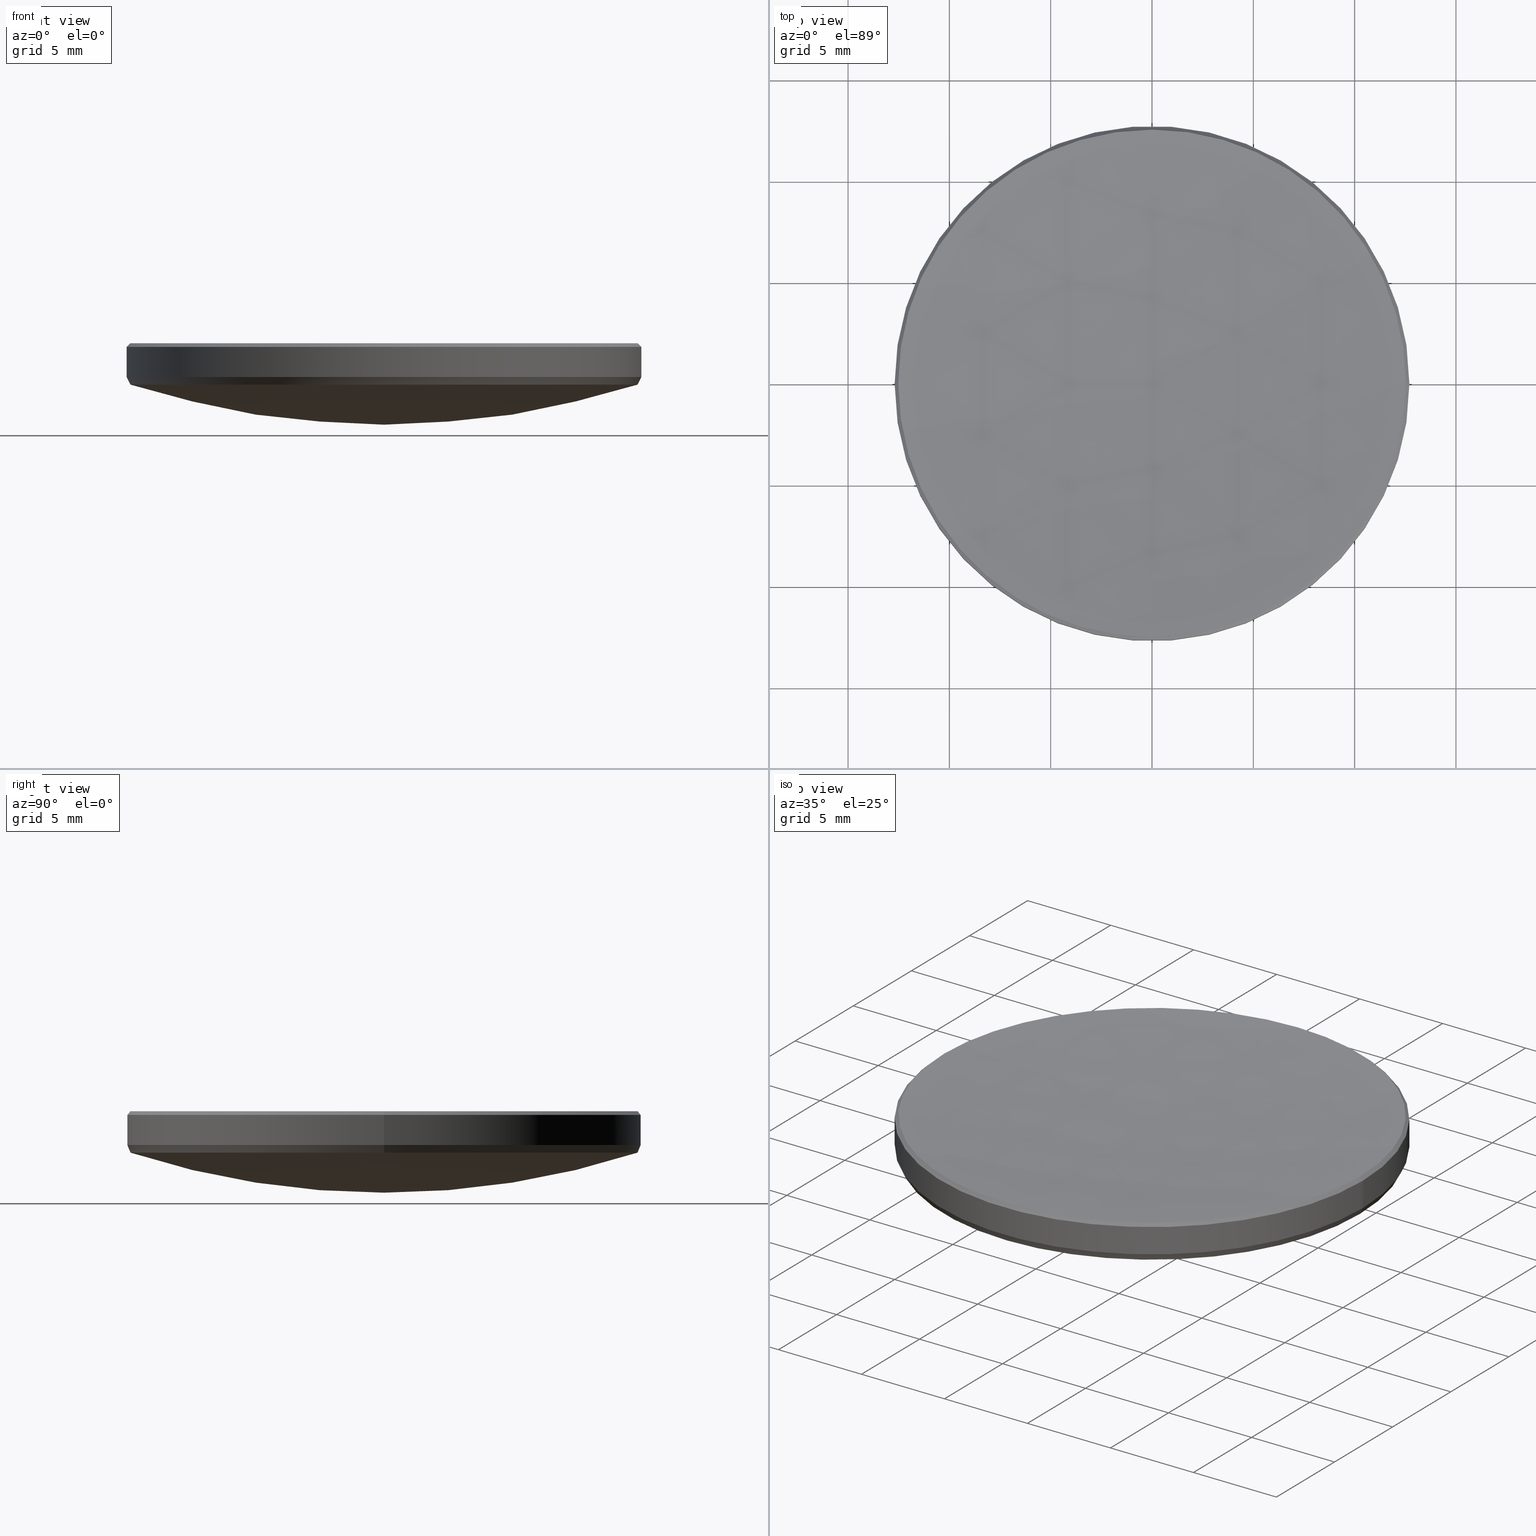
[diagram: canonical four-view strip — front | top / right | iso, engineering-drawing reading convention]
A machine part, canonical four-view strip (front | top / right | iso — engineering-drawing reading convention). The complete STEP part file that produces these views, byte-faithful:
ISO-10303-21;
HEADER;
FILE_DESCRIPTION (( 'STEP AP214' ),
    '1' );
FILE_NAME ('GLM1-025B-125-NIR.STEP',
    '2024-08-09T02:14:00',
    ( 'Windows User' ),
    ( 'P R C' ),
    'SwSTEP 2.0',
    'SolidWorks 2022',
    '' );
FILE_SCHEMA (( 'AUTOMOTIVE_DESIGN' ));
ENDSEC;

DATA;
#1 = DIRECTION ( 'NONE',  ( 1.000000000000000000, 0.000000000000000000, 0.000000000000000000 ) ) ;
#2 = CARTESIAN_POINT ( 'NONE',  ( 12.69999999999999929, 0.000000000000000000, 4.313967534857077624 ) ) ;
#3 = EDGE_CURVE ( 'NONE', #129, #217, #34, .T. ) ;
#4 = CARTESIAN_POINT ( 'NONE',  ( -12.69999999999999929, 1.555301434917138433E-15, 4.313967534857077624 ) ) ;
#5 = CIRCLE ( 'NONE', #101, 40.59999999999999432 ) ;
#6 = DIRECTION ( 'NONE',  ( -1.000000000000000000, 0.000000000000000000, 0.000000000000000000 ) ) ;
#7 = DIRECTION ( 'NONE',  ( 1.000000000000000000, 0.000000000000000000, 0.000000000000000000 ) ) ;
#8 = ORIENTED_EDGE ( 'NONE', *, *, #225, .F. ) ;
#9 = EDGE_LOOP ( 'NONE', ( #63, #190, #320, #144 ) ) ;
#10 = AXIS2_PLACEMENT_3D ( 'NONE', #327, #102, #98 ) ;
#11 = ORIENTED_EDGE ( 'NONE', *, *, #198, .F. ) ;
#12 = VERTEX_POINT ( 'NONE', #330 ) ;
#13 = AXIS2_PLACEMENT_3D ( 'NONE', #202, #284, #257 ) ;
#14 = ADVANCED_FACE ( 'NONE', ( #307 ), #150, .F. ) ;
#15 = APPLICATION_CONTEXT ( 'automotive_design' ) ;
#16 = ORIENTED_EDGE ( 'NONE', *, *, #29, .F. ) ;
#17 =( NAMED_UNIT ( * ) SI_UNIT ( $, .STERADIAN. ) SOLID_ANGLE_UNIT ( ) );
#18 = VECTOR ( 'NONE', #282, 1000.000000000000000 ) ;
#19 = PRESENTATION_LAYER_ASSIGNMENT (  '', '', ( #117 ) ) ;
#20 = DIRECTION ( 'NONE',  ( -1.000000000000000000, 0.000000000000000000, 0.000000000000000000 ) ) ;
#21 = STYLED_ITEM ( 'NONE', ( #135 ), #229 ) ;
#22 = CARTESIAN_POINT ( 'NONE',  ( -12.51034897911231170, 1.543688659132881617E-15, 3.938057364562333351 ) ) ;
#23 = DIRECTION ( 'NONE',  ( 0.000000000000000000, 0.000000000000000000, 1.000000000000000000 ) ) ;
#24 = EDGE_CURVE ( 'NONE', #266, #234, #65, .T. ) ;
#25 = CARTESIAN_POINT ( 'NONE',  ( 0.000000000000000000, 0.000000000000000000, 112.1429225148808655 ) ) ;
#26 = CARTESIAN_POINT ( 'NONE',  ( 12.52123640383887881, 1.533409208332859768E-15, 5.978763596161118521 ) ) ;
#27 = UNCERTAINTY_MEASURE_WITH_UNIT (LENGTH_MEASURE( 1.000000000000000082E-05 ), #271, 'distance_accuracy_value', 'NONE');
#28 = CYLINDRICAL_SURFACE ( 'NONE', #10, 12.69999999999999929 ) ;
#29 = EDGE_CURVE ( 'NONE', #213, #66, #325, .T. ) ;
#30 = DIRECTION ( 'NONE',  ( -0.000000000000000000, -0.000000000000000000, 1.000000000000000000 ) ) ;
#31 = SPHERICAL_SURFACE ( 'NONE', #253, 40.59999999999999432 ) ;
#32 = DIRECTION ( 'NONE',  ( -1.000000000000000000, 0.000000000000000000, 0.000000000000000000 ) ) ;
#33 = CARTESIAN_POINT ( 'NONE',  ( 0.000000000000000000, 0.000000000000000000, 4.313967534857077624 ) ) ;
#34 = CIRCLE ( 'NONE', #243, 12.51034897911231170 ) ;
#35 = CARTESIAN_POINT ( 'NONE',  ( 0.000000000000000000, 0.000000000000000000, 42.56254659640620730 ) ) ;
#36 = ORIENTED_EDGE ( 'NONE', *, *, #41, .T. ) ;
#37 = FACE_OUTER_BOUND ( 'NONE', #240, .T. ) ;
#38 = VERTEX_POINT ( 'NONE', #77 ) ;
#39 = EDGE_LOOP ( 'NONE', ( #216, #167, #166, #262, #292 ) ) ;
#40 = AXIS2_PLACEMENT_3D ( 'NONE', #25, #20, #221 ) ;
#41 = EDGE_CURVE ( 'NONE', #12, #38, #156, .T. ) ;
#42 = ORIENTED_EDGE ( 'NONE', *, *, #316, .T. ) ;
#43 = VERTEX_POINT ( 'NONE', #22 ) ;
#44 =( GEOMETRIC_REPRESENTATION_CONTEXT ( 3 ) GLOBAL_UNCERTAINTY_ASSIGNED_CONTEXT ( ( #51 ) ) GLOBAL_UNIT_ASSIGNED_CONTEXT ( ( #211, #115, #237 ) ) REPRESENTATION_CONTEXT ( 'NONE', 'WORKASPACE' ) );
#45 = SURFACE_SIDE_STYLE ('',( #267 ) ) ;
#46 = PRODUCT_RELATED_PRODUCT_CATEGORY ( 'part', '', ( #301 ) ) ;
#47 = SHAPE_DEFINITION_REPRESENTATION ( #331, #67 ) ;
#48 = VECTOR ( 'NONE', #110, 1000.000000000000000 ) ;
#49 = CARTESIAN_POINT ( 'NONE',  ( 0.000000000000000000, 0.000000000000000000, 5.978763596161104310 ) ) ;
#50 = AXIS2_PLACEMENT_3D ( 'NONE', #173, #148, #1 ) ;
#51 = UNCERTAINTY_MEASURE_WITH_UNIT (LENGTH_MEASURE( 1.000000000000000082E-05 ), #211, 'distance_accuracy_value', 'NONE');
#52 = FACE_OUTER_BOUND ( 'NONE', #322, .T. ) ;
#53 = CARTESIAN_POINT ( 'NONE',  ( 0.000000000000000000, 0.000000000000000000, 5.978763596161104310 ) ) ;
#54 = CARTESIAN_POINT ( 'NONE',  ( -12.52123640383887881, 0.000000000000000000, 5.978763596161118521 ) ) ;
#55 = AXIS2_PLACEMENT_3D ( 'NONE', #97, #249, #74 ) ;
#56 = DIRECTION ( 'NONE',  ( 0.000000000000000000, 0.000000000000000000, -1.000000000000000000 ) ) ;
#57 = UNCERTAINTY_MEASURE_WITH_UNIT (LENGTH_MEASURE( 1.000000000000000082E-05 ), #310, 'distance_accuracy_value', 'NONE');
#58 = LINE ( 'NONE', #4, #288 ) ;
#59 = AXIS2_PLACEMENT_3D ( 'NONE', #245, #126, #79 ) ;
#60 = CARTESIAN_POINT ( 'NONE',  ( 0.000000000000000000, 0.000000000000000000, 42.56254659640620730 ) ) ;
#61 = ORIENTED_EDGE ( 'NONE', *, *, #232, .T. ) ;
#62 = DIRECTION ( 'NONE',  ( -1.000000000000000000, 0.000000000000000000, 0.000000000000000000 ) ) ;
#63 = ORIENTED_EDGE ( 'NONE', *, *, #321, .F. ) ;
#64 = ORIENTED_EDGE ( 'NONE', *, *, #120, .F. ) ;
#65 = CIRCLE ( 'NONE', #93, 12.69999999999999929 ) ;
#66 = VERTEX_POINT ( 'NONE', #277 ) ;
#67 = ADVANCED_BREP_SHAPE_REPRESENTATION ( 'GLM1-025B-125-NIR', ( #229, #235 ), #44 ) ;
#68 = FILL_AREA_STYLE_COLOUR ( '', #72 ) ;
#69 =( GEOMETRIC_REPRESENTATION_CONTEXT ( 3 ) GLOBAL_UNCERTAINTY_ASSIGNED_CONTEXT ( ( #57 ) ) GLOBAL_UNIT_ASSIGNED_CONTEXT ( ( #310, #176, #332 ) ) REPRESENTATION_CONTEXT ( 'NONE', 'WORKASPACE' ) );
#70 = AXIS2_PLACEMENT_3D ( 'NONE', #35, #180, #280 ) ;
#71 = ORIENTED_EDGE ( 'NONE', *, *, #96, .T. ) ;
#72 = COLOUR_RGB ( '',1.000000000000000000, 1.000000000000000000, 1.000000000000000000 ) ;
#73 = EDGE_CURVE ( 'NONE', #145, #118, #181, .T. ) ;
#74 = DIRECTION ( 'NONE',  ( 0.000000000000000000, 0.000000000000000000, -1.000000000000000000 ) ) ;
#75 = DIRECTION ( 'NONE',  ( 0.000000000000000000, 0.000000000000000000, -1.000000000000000000 ) ) ;
#76 = CONICAL_SURFACE ( 'NONE', #143, 12.52123640383887881, 0.7853981633974531640 ) ;
#77 = CARTESIAN_POINT ( 'NONE',  ( 12.69999999999999929, 1.555301434917138433E-15, 5.799999999999999822 ) ) ;
#78 = ADVANCED_FACE ( 'NONE', ( #153 ), #28, .T. ) ;
#79 = DIRECTION ( 'NONE',  ( 1.000000000000000000, 0.000000000000000000, 0.000000000000000000 ) ) ;
#80 = CARTESIAN_POINT ( 'NONE',  ( 12.69999999999999929, 1.555301434917138433E-15, 4.313967534857077624 ) ) ;
#81 = VERTEX_POINT ( 'NONE', #226 ) ;
#82 = AXIS2_PLACEMENT_3D ( 'NONE', #200, #175, #154 ) ;
#83 = CARTESIAN_POINT ( 'NONE',  ( -12.69999999999999929, 0.000000000000000000, 10.00000000000000000 ) ) ;
#84 = AXIS2_PLACEMENT_3D ( 'NONE', #60, #62, #164 ) ;
#85 = EDGE_CURVE ( 'NONE', #66, #38, #252, .T. ) ;
#86 = DIRECTION ( 'NONE',  ( -0.000000000000000000, -0.000000000000000000, 1.000000000000000000 ) ) ;
#87 = DIRECTION ( 'NONE',  ( -0.000000000000000000, -0.000000000000000000, 1.000000000000000000 ) ) ;
#88 = SURFACE_STYLE_USAGE ( .BOTH. , #45 ) ;
#89 = ORIENTED_EDGE ( 'NONE', *, *, #232, .F. ) ;
#90 = ORIENTED_EDGE ( 'NONE', *, *, #24, .F. ) ;
#91 = ORIENTED_EDGE ( 'NONE', *, *, #146, .T. ) ;
#92 = ORIENTED_EDGE ( 'NONE', *, *, #269, .F. ) ;
#93 = AXIS2_PLACEMENT_3D ( 'NONE', #123, #248, #275 ) ;
#94 = ORIENTED_EDGE ( 'NONE', *, *, #3, .F. ) ;
#95 = AXIS2_PLACEMENT_3D ( 'NONE', #304, #149, #222 ) ;
#96 = EDGE_CURVE ( 'NONE', #187, #302, #5, .T. ) ;
#97 = CARTESIAN_POINT ( 'NONE',  ( 0.000000000000000000, 0.000000000000000000, 112.1429225148808655 ) ) ;
#98 = DIRECTION ( 'NONE',  ( -1.000000000000000000, 0.000000000000000000, 0.000000000000000000 ) ) ;
#99 = DIRECTION ( 'NONE',  ( -1.000000000000000000, 0.000000000000000000, 0.000000000000000000 ) ) ;
#100 = ADVANCED_FACE ( 'NONE', ( #52 ), #306, .T. ) ;
#101 = AXIS2_PLACEMENT_3D ( 'NONE', #128, #224, #75 ) ;
#102 = DIRECTION ( 'NONE',  ( -0.000000000000000000, -0.000000000000000000, -1.000000000000000000 ) ) ;
#103 = FILL_AREA_STYLE_COLOUR ( '', #168 ) ;
#104 = PRODUCT_DEFINITION_FORMATION_WITH_SPECIFIED_SOURCE ( '�κ�', '', #301, .NOT_KNOWN. ) ;
#105 = CARTESIAN_POINT ( 'NONE',  ( 12.51034897911231170, 0.000000000000000000, 3.938057364562333351 ) ) ;
#106 = DIRECTION ( 'NONE',  ( 0.000000000000000000, 0.000000000000000000, -1.000000000000000000 ) ) ;
#107 = ADVANCED_FACE ( 'NONE', ( #201 ), #326, .T. ) ;
#108 = CARTESIAN_POINT ( 'NONE',  ( 0.000000000000000000, 0.000000000000000000, 3.938057364562333351 ) ) ;
#109 = CONICAL_SURFACE ( 'NONE', #197, 12.69999999999999929, 0.4672503280471582698 ) ;
#110 = DIRECTION ( 'NONE',  ( -0.000000000000000000, -0.000000000000000000, -1.000000000000000000 ) ) ;
#111 = ORIENTED_EDGE ( 'NONE', *, *, #268, .F. ) ;
#112 = LINE ( 'NONE', #138, #48 ) ;
#113 = EDGE_LOOP ( 'NONE', ( #8, #71, #242, #169 ) ) ;
#114 = MECHANICAL_DESIGN_GEOMETRIC_PRESENTATION_REPRESENTATION (  '', ( #21 ), #69 ) ;
#115 =( NAMED_UNIT ( * ) PLANE_ANGLE_UNIT ( ) SI_UNIT ( $, .RADIAN. ) );
#116 = ORIENTED_EDGE ( 'NONE', *, *, #297, .F. ) ;
#117 = STYLED_ITEM ( 'NONE', ( #289 ), #67 ) ;
#118 = VERTEX_POINT ( 'NONE', #274 ) ;
#119 = ORIENTED_EDGE ( 'NONE', *, *, #146, .F. ) ;
#120 = EDGE_CURVE ( 'NONE', #302, #129, #261, .T. ) ;
#121 = AXIS2_PLACEMENT_3D ( 'NONE', #137, #255, #6 ) ;
#122 = CIRCLE ( 'NONE', #227, 12.52123640383887704 ) ;
#123 = CARTESIAN_POINT ( 'NONE',  ( 0.000000000000000000, 0.000000000000000000, 4.313967534857077624 ) ) ;
#124 = VECTOR ( 'NONE', #199, 1000.000000000000000 ) ;
#125 = DIRECTION ( 'NONE',  ( 1.000000000000000000, 0.000000000000000000, 0.000000000000000000 ) ) ;
#126 = DIRECTION ( 'NONE',  ( 0.000000000000000000, 0.000000000000000000, -1.000000000000000000 ) ) ;
#127 = SURFACE_STYLE_USAGE ( .BOTH. , #131 ) ;
#128 = CARTESIAN_POINT ( 'NONE',  ( 0.000000000000000000, 0.000000000000000000, 42.56254659640620730 ) ) ;
#129 = VERTEX_POINT ( 'NONE', #105 ) ;
#130 = CARTESIAN_POINT ( 'NONE',  ( 0.000000000000000000, 0.000000000000000000, 42.56254659640620730 ) ) ;
#131 = SURFACE_SIDE_STYLE ('',( #281 ) ) ;
#132 = ADVANCED_FACE ( 'NONE', ( #203 ), #196, .F. ) ;
#133 = CARTESIAN_POINT ( 'NONE',  ( 0.000000000000000000, 2.486033002269126979E-15, 1.962546596406211652 ) ) ;
#134 = PRODUCT_DEFINITION_CONTEXT ( 'detailed design', #165, 'design' ) ;
#135 = PRESENTATION_STYLE_ASSIGNMENT (( #127 ) ) ;
#136 = AXIS2_PLACEMENT_3D ( 'NONE', #313, #56, #285 ) ;
#137 = CARTESIAN_POINT ( 'NONE',  ( 0.000000000000000000, 0.000000000000000000, 5.978763596161118521 ) ) ;
#138 = CARTESIAN_POINT ( 'NONE',  ( 12.69999999999999929, 1.555301434917138433E-15, 10.00000000000000000 ) ) ;
#139 = ORIENTED_EDGE ( 'NONE', *, *, #225, .T. ) ;
#140 = EDGE_CURVE ( 'NONE', #81, #145, #273, .T. ) ;
#141 = ORIENTED_EDGE ( 'NONE', *, *, #152, .T. ) ;
#142 = ORIENTED_EDGE ( 'NONE', *, *, #258, .T. ) ;
#143 = AXIS2_PLACEMENT_3D ( 'NONE', #157, #230, #32 ) ;
#144 = ORIENTED_EDGE ( 'NONE', *, *, #297, .T. ) ;
#145 = VERTEX_POINT ( 'NONE', #256 ) ;
#146 = EDGE_CURVE ( 'NONE', #43, #302, #231, .T. ) ;
#147 = AXIS2_PLACEMENT_3D ( 'NONE', #160, #87, #186 ) ;
#148 = DIRECTION ( 'NONE',  ( -0.000000000000000000, -0.000000000000000000, 1.000000000000000000 ) ) ;
#149 = DIRECTION ( 'NONE',  ( -1.000000000000000000, 0.000000000000000000, 0.000000000000000000 ) ) ;
#150 = SPHERICAL_SURFACE ( 'NONE', #95, 106.9000000000000057 ) ;
#151 = DIRECTION ( 'NONE',  ( -0.7071067811865510144, 0.000000000000000000, -0.7071067811865441310 ) ) ;
#152 = EDGE_CURVE ( 'NONE', #38, #12, #238, .T. ) ;
#153 = FACE_OUTER_BOUND ( 'NONE', #212, .T. ) ;
#154 = DIRECTION ( 'NONE',  ( 1.000000000000000000, 0.000000000000000000, 0.000000000000000000 ) ) ;
#155 = CARTESIAN_POINT ( 'NONE',  ( 0.000000000000000000, 0.000000000000000000, 4.313967534857077624 ) ) ;
#156 = CIRCLE ( 'NONE', #82, 12.69999999999999929 ) ;
#157 = CARTESIAN_POINT ( 'NONE',  ( 0.000000000000000000, 0.000000000000000000, 5.978763596161118521 ) ) ;
#158 = CARTESIAN_POINT ( 'NONE',  ( -1.533409208332850696E-15, -12.52123640383880421, 5.978763596161098093 ) ) ;
#159 = DIRECTION ( 'NONE',  ( -1.000000000000000000, 0.000000000000000000, 0.000000000000000000 ) ) ;
#160 = CARTESIAN_POINT ( 'NONE',  ( 0.000000000000000000, 0.000000000000000000, 5.978763596161104310 ) ) ;
#161 = DIRECTION ( 'NONE',  ( -1.000000000000000000, 1.224646799147353207E-16, 0.000000000000000000 ) ) ;
#162 = EDGE_LOOP ( 'NONE', ( #92, #141, #236, #319 ) ) ;
#163 = AXIS2_PLACEMENT_3D ( 'NONE', #155, #30, #260 ) ;
#164 = DIRECTION ( 'NONE',  ( 0.000000000000000000, 1.000000000000000000, 0.000000000000000000 ) ) ;
#165 = APPLICATION_CONTEXT ( 'automotive_design' ) ;
#166 = ORIENTED_EDGE ( 'NONE', *, *, #41, .F. ) ;
#167 = ORIENTED_EDGE ( 'NONE', *, *, #85, .T. ) ;
#168 = COLOUR_RGB ( '',1.000000000000000000, 1.000000000000000000, 1.000000000000000000 ) ;
#169 = ORIENTED_EDGE ( 'NONE', *, *, #3, .T. ) ;
#170 = FILL_AREA_STYLE ('',( #68 ) ) ;
#171 = ORIENTED_EDGE ( 'NONE', *, *, #269, .T. ) ;
#172 = CARTESIAN_POINT ( 'NONE',  ( 0.000000000000000000, 0.000000000000000000, 3.938057364562333351 ) ) ;
#173 = CARTESIAN_POINT ( 'NONE',  ( 0.000000000000000000, 0.000000000000000000, 4.313967534857077624 ) ) ;
#174 = APPLICATION_PROTOCOL_DEFINITION ( 'draft international standard', 'automotive_design', 1998, #165 ) ;
#175 = DIRECTION ( 'NONE',  ( 0.000000000000000000, 0.000000000000000000, -1.000000000000000000 ) ) ;
#176 =( NAMED_UNIT ( * ) PLANE_ANGLE_UNIT ( ) SI_UNIT ( $, .RADIAN. ) );
#177 = ORIENTED_EDGE ( 'NONE', *, *, #258, .F. ) ;
#178 = DIRECTION ( 'NONE',  ( 1.000000000000000000, 0.000000000000000000, 0.000000000000000000 ) ) ;
#179 = ADVANCED_FACE ( 'NONE', ( #206 ), #76, .T. ) ;
#180 = DIRECTION ( 'NONE',  ( -1.000000000000000000, 1.224646799147353207E-16, 0.000000000000000000 ) ) ;
#181 = CIRCLE ( 'NONE', #295, 12.52123640383887704 ) ;
#182 = FACE_OUTER_BOUND ( 'NONE', #113, .T. ) ;
#183 = FILL_AREA_STYLE ('',( #103 ) ) ;
#184 = DIRECTION ( 'NONE',  ( 1.000000000000000000, 0.000000000000000000, 0.000000000000000000 ) ) ;
#185 = FACE_OUTER_BOUND ( 'NONE', #329, .T. ) ;
#186 = DIRECTION ( 'NONE',  ( 1.000000000000000000, 0.000000000000000000, 0.000000000000000000 ) ) ;
#187 = VERTEX_POINT ( 'NONE', #133 ) ;
#188 = DIRECTION ( 'NONE',  ( -1.224646799147353207E-16, -1.000000000000000000, 0.000000000000000000 ) ) ;
#189 = ORIENTED_EDGE ( 'NONE', *, *, #140, .F. ) ;
#190 = ORIENTED_EDGE ( 'NONE', *, *, #140, .T. ) ;
#191 = ADVANCED_FACE ( 'NONE', ( #182 ), #31, .T. ) ;
#192 = ORIENTED_EDGE ( 'NONE', *, *, #246, .T. ) ;
#193 = ADVANCED_FACE ( 'NONE', ( #228 ), #311, .T. ) ;
#194 = AXIS2_PLACEMENT_3D ( 'NONE', #53, #270, #303 ) ;
#195 = ORIENTED_EDGE ( 'NONE', *, *, #85, .F. ) ;
#196 = SPHERICAL_SURFACE ( 'NONE', #40, 106.9000000000000057 ) ;
#197 = AXIS2_PLACEMENT_3D ( 'NONE', #33, #86, #178 ) ;
#198 = EDGE_CURVE ( 'NONE', #12, #266, #312, .T. ) ;
#199 = DIRECTION ( 'NONE',  ( 0.7071067811865510144, 8.659560562354975999E-17, -0.7071067811865441310 ) ) ;
#200 = CARTESIAN_POINT ( 'NONE',  ( 0.000000000000000000, 0.000000000000000000, 5.799999999999999822 ) ) ;
#201 = FACE_OUTER_BOUND ( 'NONE', #162, .T. ) ;
#202 = CARTESIAN_POINT ( 'NONE',  ( 0.000000000000000000, 0.000000000000000000, 3.938057364562333351 ) ) ;
#203 = FACE_OUTER_BOUND ( 'NONE', #9, .T. ) ;
#204 = DIRECTION ( 'NONE',  ( 0.000000000000000000, 1.000000000000000000, 0.000000000000000000 ) ) ;
#205 = PRESENTATION_LAYER_ASSIGNMENT (  '', '', ( #21 ) ) ;
#206 = FACE_OUTER_BOUND ( 'NONE', #294, .T. ) ;
#207 = CIRCLE ( 'NONE', #13, 12.51034897911231170 ) ;
#208 = PRODUCT_DEFINITION ( 'δ֪', '', #104, #134 ) ;
#209 = CARTESIAN_POINT ( 'NONE',  ( 0.000000000000000000, 0.000000000000000000, 5.978763596161104310 ) ) ;
#210 = EDGE_LOOP ( 'NONE', ( #189, #264, #317, #42 ) ) ;
#211 =( LENGTH_UNIT ( ) NAMED_UNIT ( * ) SI_UNIT ( .MILLI., .METRE. ) );
#212 = EDGE_LOOP ( 'NONE', ( #36, #171, #318, #11 ) ) ;
#213 = VERTEX_POINT ( 'NONE', #158 ) ;
#214 = EDGE_CURVE ( 'NONE', #43, #266, #58, .T. ) ;
#215 = VECTOR ( 'NONE', #250, 1000.000000000000114 ) ;
#216 = ORIENTED_EDGE ( 'NONE', *, *, #316, .F. ) ;
#217 = VERTEX_POINT ( 'NONE', #233 ) ;
#218 = AXIS2_PLACEMENT_3D ( 'NONE', #287, #161, #188 ) ;
#219 =( NAMED_UNIT ( * ) PLANE_ANGLE_UNIT ( ) SI_UNIT ( $, .RADIAN. ) );
#220 = CIRCLE ( 'NONE', #70, 40.59999999999999432 ) ;
#221 = DIRECTION ( 'NONE',  ( 0.000000000000000000, 1.000000000000000000, 0.000000000000000000 ) ) ;
#222 = DIRECTION ( 'NONE',  ( 0.000000000000000000, 1.000000000000000000, 0.000000000000000000 ) ) ;
#223 = DIRECTION ( 'NONE',  ( -0.000000000000000000, -0.000000000000000000, -1.000000000000000000 ) ) ;
#224 = DIRECTION ( 'NONE',  ( 1.000000000000000000, -0.000000000000000000, 0.000000000000000000 ) ) ;
#225 = EDGE_CURVE ( 'NONE', #187, #217, #220, .T. ) ;
#226 = CARTESIAN_POINT ( 'NONE',  ( 0.000000000000000000, 6.545737141442603608E-15, 5.242922514880857143 ) ) ;
#227 = AXIS2_PLACEMENT_3D ( 'NONE', #209, #291, #7 ) ;
#228 = FACE_OUTER_BOUND ( 'NONE', #39, .T. ) ;
#229 = MANIFOLD_SOLID_BREP ( '����1', #300 ) ;
#230 = DIRECTION ( 'NONE',  ( 0.000000000000000000, 0.000000000000000000, -1.000000000000000000 ) ) ;
#231 = CIRCLE ( 'NONE', #279, 12.51034897911231170 ) ;
#232 = EDGE_CURVE ( 'NONE', #217, #43, #207, .T. ) ;
#233 = CARTESIAN_POINT ( 'NONE',  ( -1.532075883348624801E-15, -12.51034897911230992, 3.938057364562333351 ) ) ;
#234 = VERTEX_POINT ( 'NONE', #80 ) ;
#235 = AXIS2_PLACEMENT_3D ( 'NONE', #324, #23, #328 ) ;
#236 = ORIENTED_EDGE ( 'NONE', *, *, #198, .T. ) ;
#237 =( NAMED_UNIT ( * ) SI_UNIT ( $, .STERADIAN. ) SOLID_ANGLE_UNIT ( ) );
#238 = CIRCLE ( 'NONE', #136, 12.69999999999999929 ) ;
#239 = ORIENTED_EDGE ( 'NONE', *, *, #96, .F. ) ;
#240 = EDGE_LOOP ( 'NONE', ( #239, #139, #61, #91 ) ) ;
#241 = MECHANICAL_DESIGN_GEOMETRIC_PRESENTATION_REPRESENTATION (  '', ( #117 ), #244 ) ;
#242 = ORIENTED_EDGE ( 'NONE', *, *, #120, .T. ) ;
#243 = AXIS2_PLACEMENT_3D ( 'NONE', #172, #309, #272 ) ;
#244 =( GEOMETRIC_REPRESENTATION_CONTEXT ( 3 ) GLOBAL_UNCERTAINTY_ASSIGNED_CONTEXT ( ( #27 ) ) GLOBAL_UNIT_ASSIGNED_CONTEXT ( ( #271, #219, #17 ) ) REPRESENTATION_CONTEXT ( 'NONE', 'WORKASPACE' ) );
#245 = CARTESIAN_POINT ( 'NONE',  ( 0.000000000000000000, 0.000000000000000000, 3.938057364562333351 ) ) ;
#246 = EDGE_CURVE ( 'NONE', #118, #12, #314, .T. ) ;
#247 = AXIS2_PLACEMENT_3D ( 'NONE', #308, #223, #99 ) ;
#248 = DIRECTION ( 'NONE',  ( -0.000000000000000000, -0.000000000000000000, 1.000000000000000000 ) ) ;
#249 = DIRECTION ( 'NONE',  ( 1.000000000000000000, 0.000000000000000000, 0.000000000000000000 ) ) ;
#250 = DIRECTION ( 'NONE',  ( 0.4504330560855231425, 0.000000000000000000, 0.8928102049066508616 ) ) ;
#251 = ADVANCED_FACE ( 'NONE', ( #185 ), #109, .T. ) ;
#252 = LINE ( 'NONE', #26, #124 ) ;
#253 = AXIS2_PLACEMENT_3D ( 'NONE', #130, #159, #204 ) ;
#254 = DIRECTION ( 'NONE',  ( -0.000000000000000000, -0.000000000000000000, 1.000000000000000000 ) ) ;
#255 = DIRECTION ( 'NONE',  ( 0.000000000000000000, 0.000000000000000000, -1.000000000000000000 ) ) ;
#256 = CARTESIAN_POINT ( 'NONE',  ( 0.000000000000000000, 12.52123640383880421, 5.978763596161098093 ) ) ;
#257 = DIRECTION ( 'NONE',  ( 1.000000000000000000, 0.000000000000000000, 0.000000000000000000 ) ) ;
#258 = EDGE_CURVE ( 'NONE', #129, #234, #286, .T. ) ;
#259 = DIRECTION ( 'NONE',  ( -0.4504330560855231425, 5.516214003652961775E-17, 0.8928102049066508616 ) ) ;
#260 = DIRECTION ( 'NONE',  ( -1.000000000000000000, 0.000000000000000000, 0.000000000000000000 ) ) ;
#261 = CIRCLE ( 'NONE', #59, 12.51034897911231170 ) ;
#262 = ORIENTED_EDGE ( 'NONE', *, *, #246, .F. ) ;
#263 = CARTESIAN_POINT ( 'NONE',  ( 0.000000000000000000, 12.51034897911230992, 3.938057364562333351 ) ) ;
#264 = ORIENTED_EDGE ( 'NONE', *, *, #321, .T. ) ;
#265 = ORIENTED_EDGE ( 'NONE', *, *, #214, .F. ) ;
#266 = VERTEX_POINT ( 'NONE', #278 ) ;
#267 = SURFACE_STYLE_FILL_AREA ( #170 ) ;
#268 = EDGE_CURVE ( 'NONE', #234, #266, #299, .T. ) ;
#269 = EDGE_CURVE ( 'NONE', #38, #234, #112, .T. ) ;
#270 = DIRECTION ( 'NONE',  ( -0.000000000000000000, -0.000000000000000000, 1.000000000000000000 ) ) ;
#271 =( LENGTH_UNIT ( ) NAMED_UNIT ( * ) SI_UNIT ( .MILLI., .METRE. ) );
#272 = DIRECTION ( 'NONE',  ( 1.000000000000000000, 0.000000000000000000, 0.000000000000000000 ) ) ;
#273 = CIRCLE ( 'NONE', #55, 106.9000000000000057 ) ;
#274 = CARTESIAN_POINT ( 'NONE',  ( -12.52123640383887704, 0.000000000000000000, 5.978763596161104310 ) ) ;
#275 = DIRECTION ( 'NONE',  ( -1.000000000000000000, 0.000000000000000000, 0.000000000000000000 ) ) ;
#276 = CIRCLE ( 'NONE', #218, 106.9000000000000057 ) ;
#277 = CARTESIAN_POINT ( 'NONE',  ( 12.52123640383887704, 1.544355321624999001E-15, 5.978763596161104310 ) ) ;
#278 = CARTESIAN_POINT ( 'NONE',  ( -12.69999999999999929, 0.000000000000000000, 4.313967534857077624 ) ) ;
#279 = AXIS2_PLACEMENT_3D ( 'NONE', #108, #106, #184 ) ;
#280 = DIRECTION ( 'NONE',  ( -1.224646799147353454E-16, -1.000000000000000000, 0.000000000000000000 ) ) ;
#281 = SURFACE_STYLE_FILL_AREA ( #183 ) ;
#282 = DIRECTION ( 'NONE',  ( -0.000000000000000000, -0.000000000000000000, -1.000000000000000000 ) ) ;
#283 = ADVANCED_FACE ( 'NONE', ( #37 ), #315, .T. ) ;
#284 = DIRECTION ( 'NONE',  ( 0.000000000000000000, 0.000000000000000000, -1.000000000000000000 ) ) ;
#285 = DIRECTION ( 'NONE',  ( 1.000000000000000000, 0.000000000000000000, 0.000000000000000000 ) ) ;
#286 = LINE ( 'NONE', #2, #215 ) ;
#287 = CARTESIAN_POINT ( 'NONE',  ( 0.000000000000000000, 0.000000000000000000, 112.1429225148808655 ) ) ;
#288 = VECTOR ( 'NONE', #259, 1000.000000000000114 ) ;
#289 = PRESENTATION_STYLE_ASSIGNMENT (( #88 ) ) ;
#290 = ORIENTED_EDGE ( 'NONE', *, *, #152, .F. ) ;
#291 = DIRECTION ( 'NONE',  ( -0.000000000000000000, -0.000000000000000000, 1.000000000000000000 ) ) ;
#292 = ORIENTED_EDGE ( 'NONE', *, *, #73, .F. ) ;
#293 = VECTOR ( 'NONE', #151, 1000.000000000000000 ) ;
#294 = EDGE_LOOP ( 'NONE', ( #195, #16, #116, #192, #290 ) ) ;
#295 = AXIS2_PLACEMENT_3D ( 'NONE', #49, #254, #125 ) ;
#296 = ORIENTED_EDGE ( 'NONE', *, *, #214, .T. ) ;
#297 = EDGE_CURVE ( 'NONE', #118, #213, #122, .T. ) ;
#298 = APPLICATION_PROTOCOL_DEFINITION ( 'draft international standard', 'automotive_design', 1998, #15 ) ;
#299 = CIRCLE ( 'NONE', #163, 12.69999999999999929 ) ;
#300 = CLOSED_SHELL ( 'NONE', ( #193, #251, #14, #283, #78, #107, #191, #132, #100, #179 ) ) ;
#301 = PRODUCT ( 'GLM1-025B-125-NIR', 'GLM1-025B-125-NIR', '', ( #305 ) ) ;
#302 = VERTEX_POINT ( 'NONE', #263 ) ;
#303 = DIRECTION ( 'NONE',  ( 1.000000000000000000, 0.000000000000000000, 0.000000000000000000 ) ) ;
#304 = CARTESIAN_POINT ( 'NONE',  ( 0.000000000000000000, 0.000000000000000000, 112.1429225148808655 ) ) ;
#305 = PRODUCT_CONTEXT ( 'NONE', #15, 'mechanical' ) ;
#306 = CONICAL_SURFACE ( 'NONE', #50, 12.69999999999999929, 0.4672503280471582698 ) ;
#307 = FACE_OUTER_BOUND ( 'NONE', #210, .T. ) ;
#308 = CARTESIAN_POINT ( 'NONE',  ( 0.000000000000000000, 0.000000000000000000, 10.00000000000000000 ) ) ;
#309 = DIRECTION ( 'NONE',  ( 0.000000000000000000, 0.000000000000000000, -1.000000000000000000 ) ) ;
#310 =( LENGTH_UNIT ( ) NAMED_UNIT ( * ) SI_UNIT ( .MILLI., .METRE. ) );
#311 = CONICAL_SURFACE ( 'NONE', #121, 12.52123640383887881, 0.7853981633974531640 ) ;
#312 = LINE ( 'NONE', #83, #18 ) ;
#313 = CARTESIAN_POINT ( 'NONE',  ( 0.000000000000000000, 0.000000000000000000, 5.799999999999999822 ) ) ;
#314 = LINE ( 'NONE', #54, #293 ) ;
#315 = SPHERICAL_SURFACE ( 'NONE', #84, 40.59999999999999432 ) ;
#316 = EDGE_CURVE ( 'NONE', #66, #145, #323, .T. ) ;
#317 = ORIENTED_EDGE ( 'NONE', *, *, #29, .T. ) ;
#318 = ORIENTED_EDGE ( 'NONE', *, *, #268, .T. ) ;
#319 = ORIENTED_EDGE ( 'NONE', *, *, #24, .T. ) ;
#320 = ORIENTED_EDGE ( 'NONE', *, *, #73, .T. ) ;
#321 = EDGE_CURVE ( 'NONE', #81, #213, #276, .T. ) ;
#322 = EDGE_LOOP ( 'NONE', ( #265, #89, #94, #142, #90 ) ) ;
#323 = CIRCLE ( 'NONE', #147, 12.52123640383887704 ) ;
#324 = CARTESIAN_POINT ( 'NONE',  ( 0.000000000000000000, 0.000000000000000000, 0.000000000000000000 ) ) ;
#325 = CIRCLE ( 'NONE', #194, 12.52123640383887704 ) ;
#326 = CYLINDRICAL_SURFACE ( 'NONE', #247, 12.69999999999999929 ) ;
#327 = CARTESIAN_POINT ( 'NONE',  ( 0.000000000000000000, 0.000000000000000000, 10.00000000000000000 ) ) ;
#328 = DIRECTION ( 'NONE',  ( 1.000000000000000000, 0.000000000000000000, 0.000000000000000000 ) ) ;
#329 = EDGE_LOOP ( 'NONE', ( #119, #296, #111, #177, #64 ) ) ;
#330 = CARTESIAN_POINT ( 'NONE',  ( -12.69999999999999929, 0.000000000000000000, 5.799999999999999822 ) ) ;
#331 = PRODUCT_DEFINITION_SHAPE ( 'NONE', 'NONE',  #208 ) ;
#332 =( NAMED_UNIT ( * ) SI_UNIT ( $, .STERADIAN. ) SOLID_ANGLE_UNIT ( ) );
ENDSEC;
END-ISO-10303-21;
